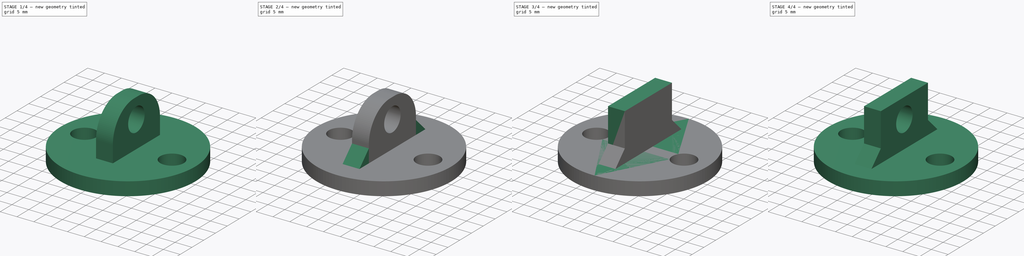
[diagram: build sequence overview — one tinted view per stage of 4, left to right]
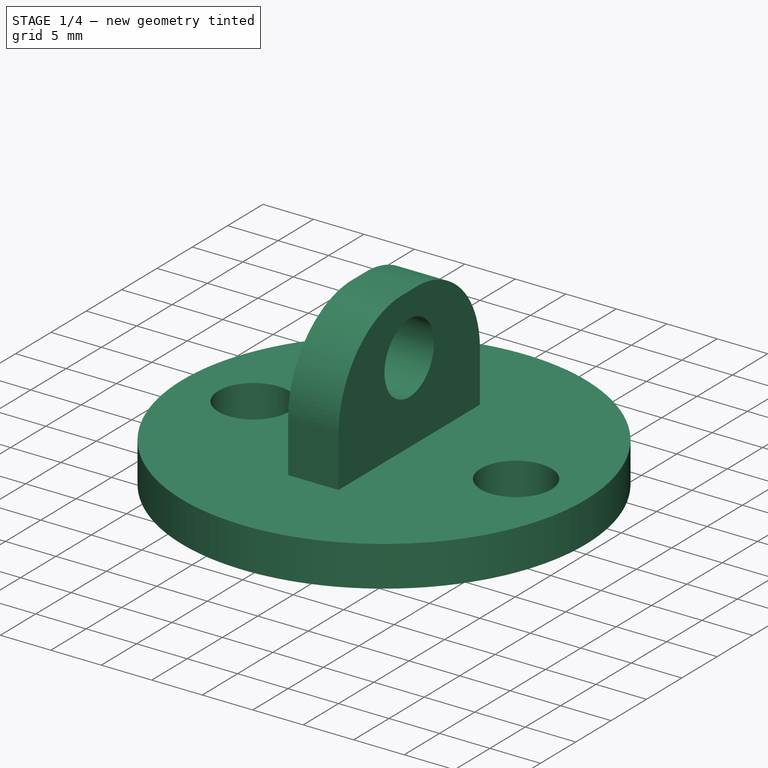
[diagram: stage 1 of 4 — iso view after this stage's code; geometry added in this stage tinted green]
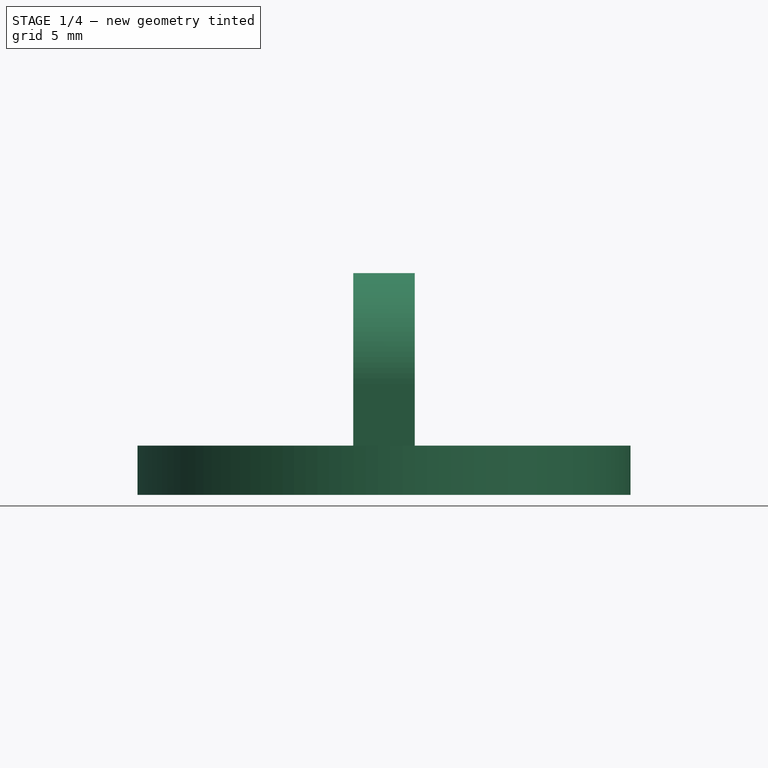
[diagram: stage 1 of 4 — front view after this stage's code; geometry added in this stage tinted green]
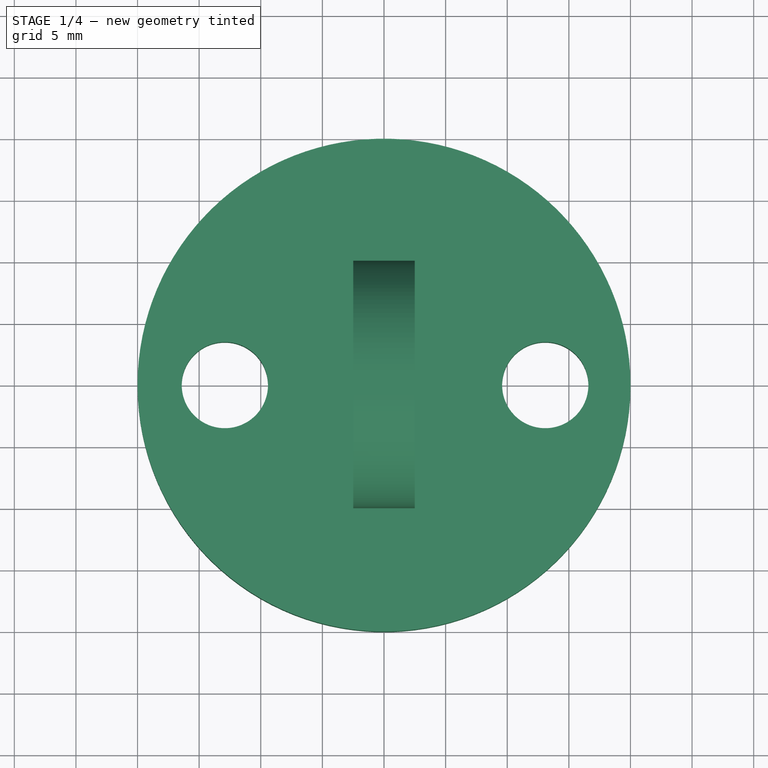
[diagram: stage 1 of 4 — top view after this stage's code; geometry added in this stage tinted green]
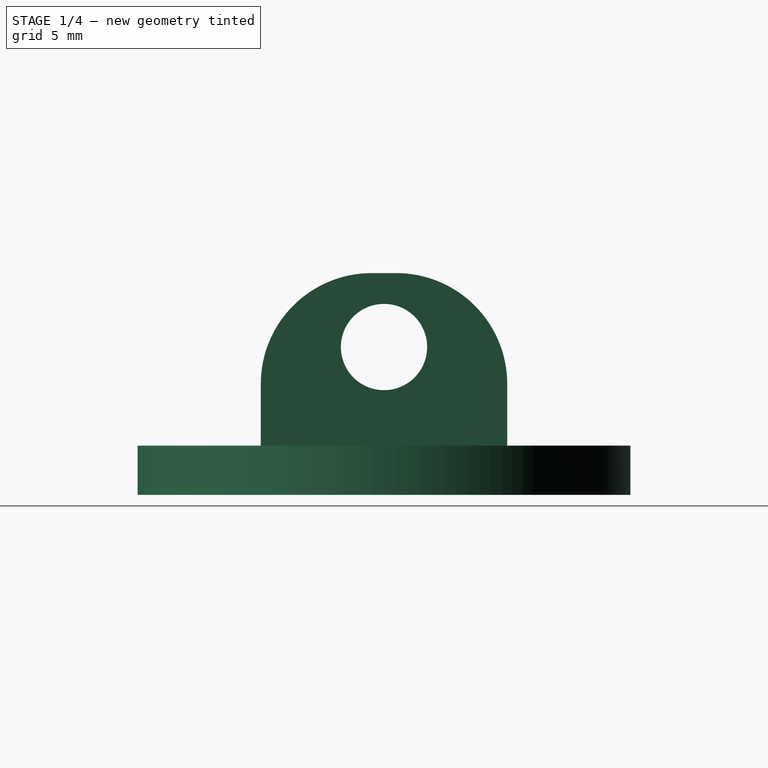
[diagram: stage 1 of 4 — right view after this stage's code; geometry added in this stage tinted green]
FCSTD DOCUMENT  (FreeCAD 0.14R3702 (Git))
Label: camera_mount
License: CC-BY 3.0
LicenseURL: http://creativecommons.org/licenses/by/3.0/
objects: Sketcher::SketchObject×2, PartDesign::Pocket×2, PartDesign::Fillet×2, PartDesign::Chamfer×2, Part::Cylinder×1, Part::Box×1, Part::MultiFuse×1, Part::Feature×1
note: 14 computed .brp shape members not serialized (recipe doc carries the construction recipe); baked Part::Feature solids carry a one-line shape summary decoded from their .brp

FEATURE [Part::Feature] Fusion001  label="base_part001"
  shape: bbox 40 x 40 x 18 mm, 11 faces (baked)
FEATURE [PartDesign::Fillet] Fillet
  Base = -> Fusion001 [Edge4]
  Radius = 9
FEATURE [PartDesign::Fillet] Fillet001
  Base = -> Fillet [Edge3]
  Radius = 9
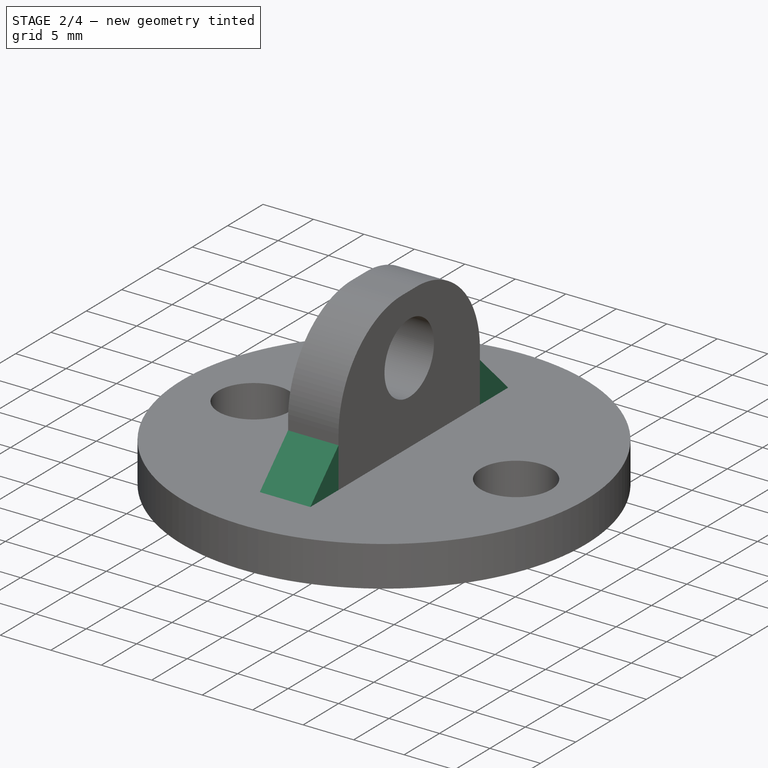
[diagram: stage 2 of 4 — iso view after this stage's code; geometry added in this stage tinted green]
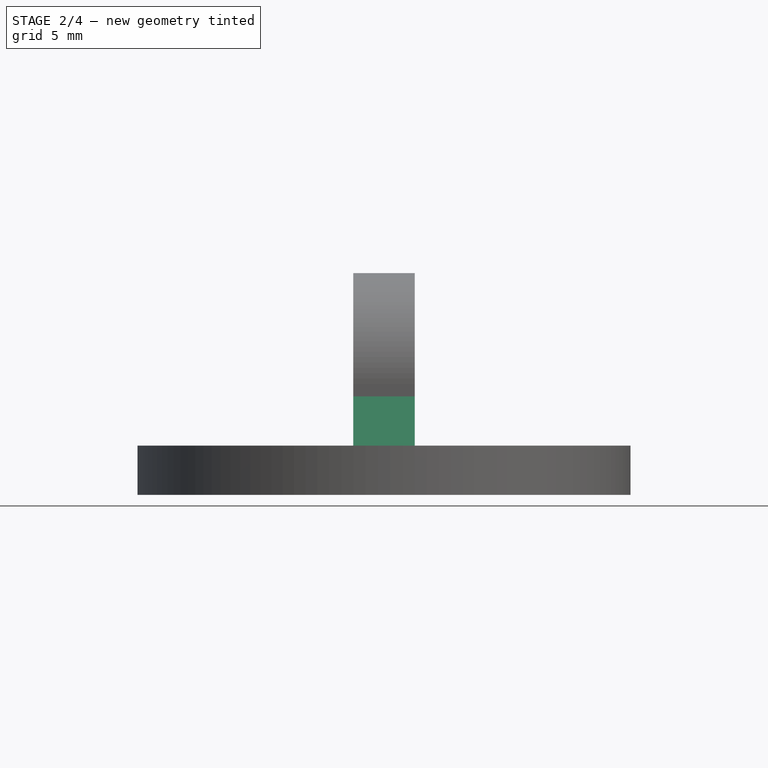
[diagram: stage 2 of 4 — front view after this stage's code; geometry added in this stage tinted green]
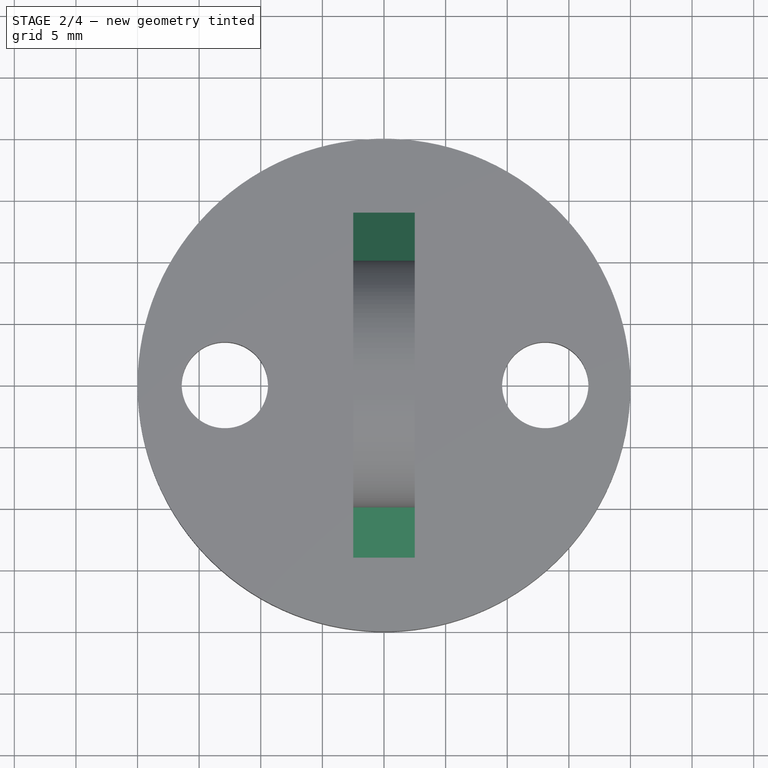
[diagram: stage 2 of 4 — top view after this stage's code; geometry added in this stage tinted green]
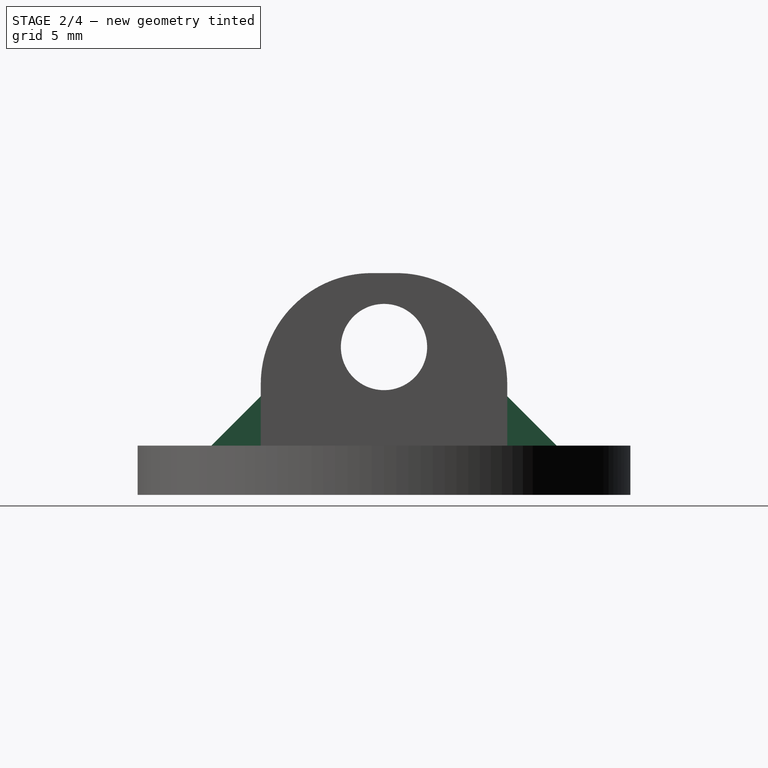
[diagram: stage 2 of 4 — right view after this stage's code; geometry added in this stage tinted green]
FEATURE [PartDesign::Chamfer] Chamfer
  Base = -> Fillet001 [Edge19]
  Size = 4
FEATURE [PartDesign::Chamfer] Chamfer001
  Base = -> Chamfer [Edge17]
  Size = 4
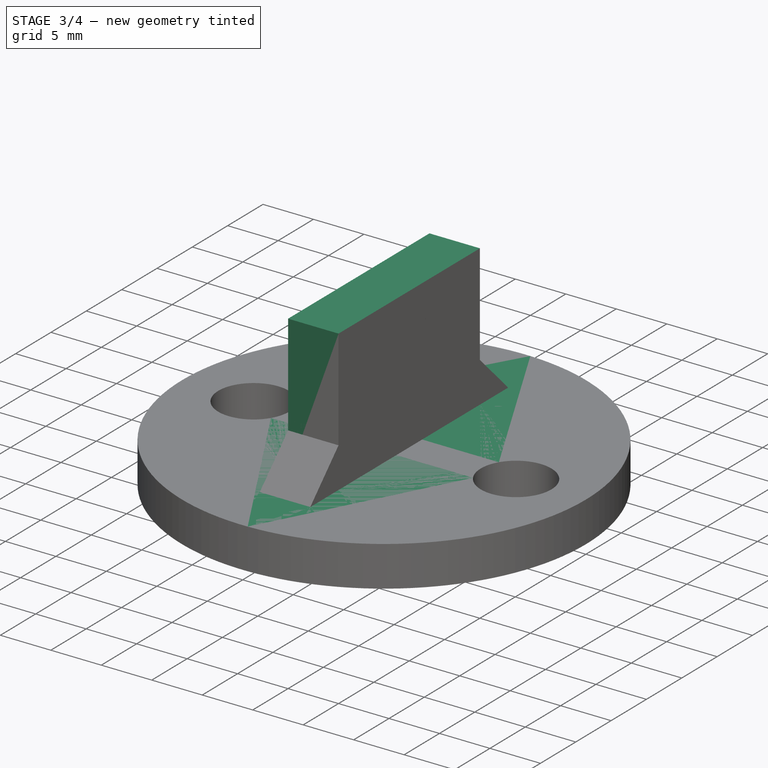
[diagram: stage 3 of 4 — iso view after this stage's code; geometry added in this stage tinted green]
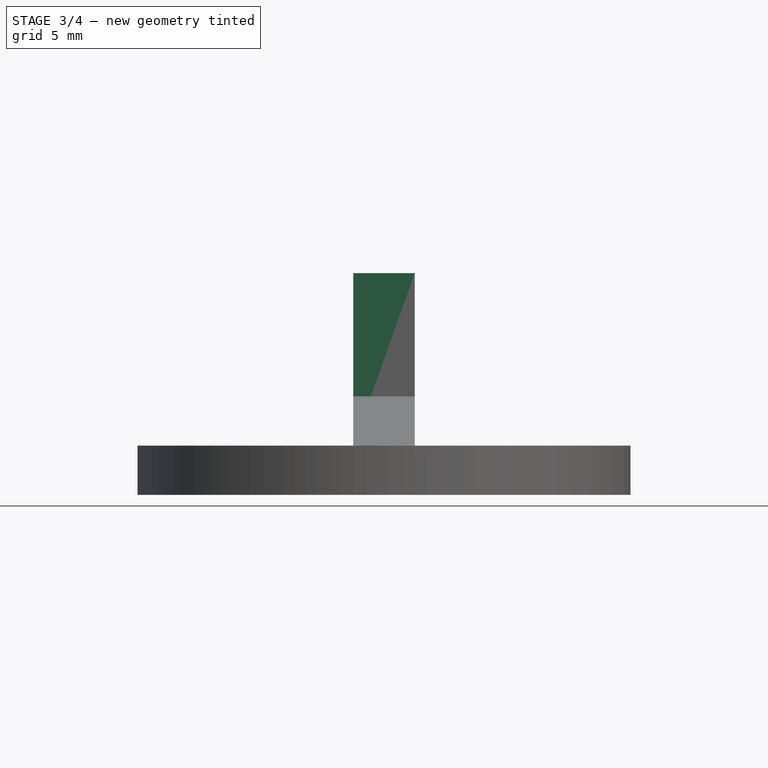
[diagram: stage 3 of 4 — front view after this stage's code; geometry added in this stage tinted green]
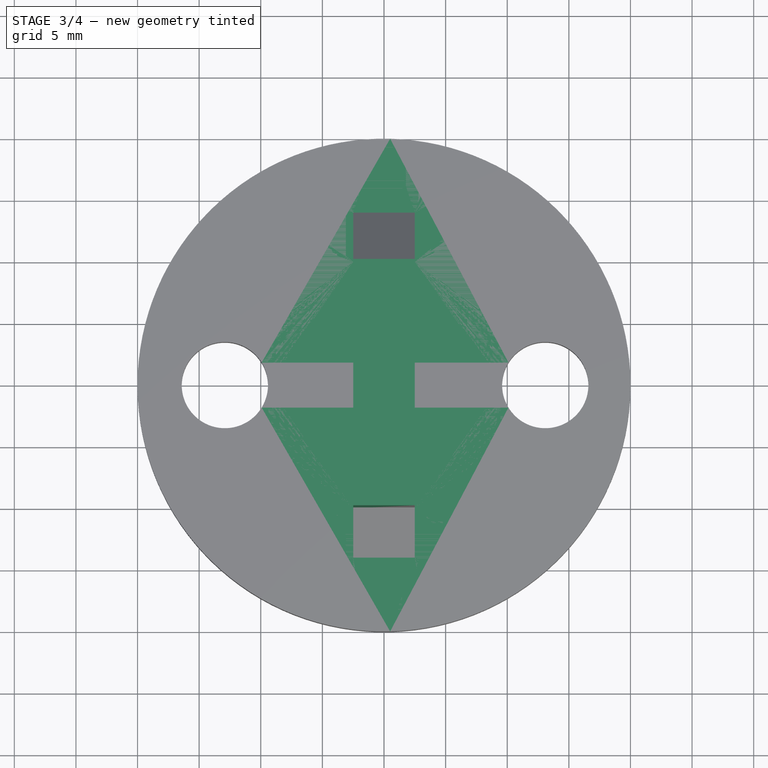
[diagram: stage 3 of 4 — top view after this stage's code; geometry added in this stage tinted green]
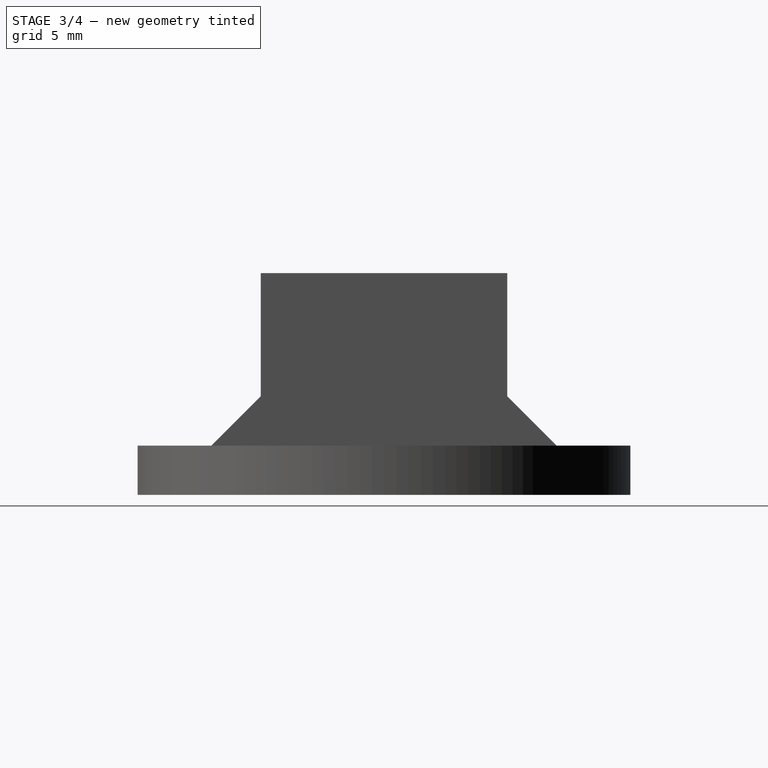
[diagram: stage 3 of 4 — right view after this stage's code; geometry added in this stage tinted green]
FEATURE [Part::Cylinder] Cylinder  label="base_cylinder"
  Angle = 360
  Height = 4
  Radius = 20
FEATURE [Part::Box] Box  label="mount_cube"
  Height = 14
  Length = 5
  Placement = pos=(-2.5,-10,4) rot=(0,0,1;0rad)
  Width = 20
FEATURE [PartDesign::Pocket] Pocket001  label="bolt_holes_pocket"
  Length = 5
  Sketch = -> Sketch001
  Type = 1
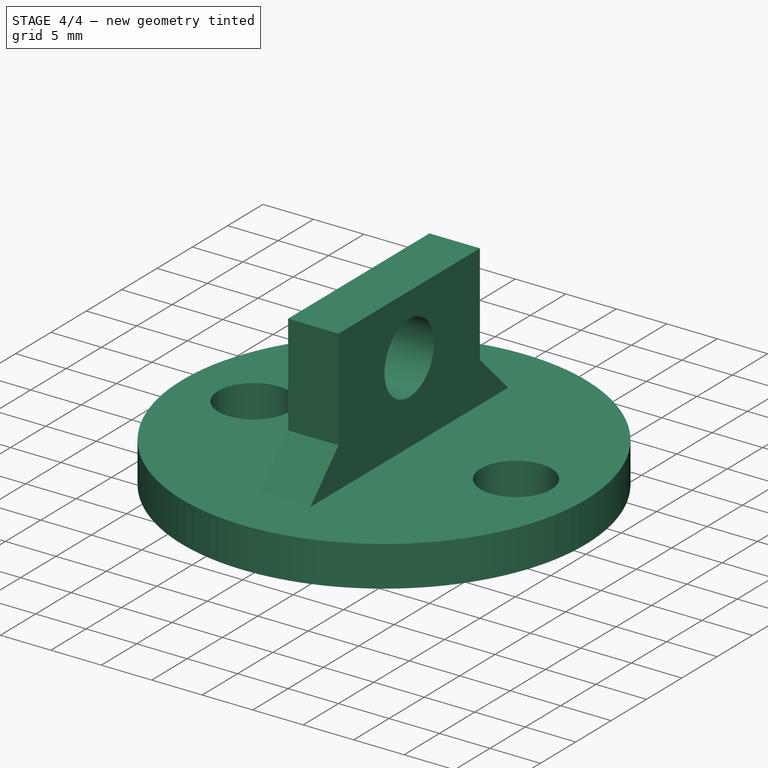
[diagram: stage 4 of 4 — iso view after this stage's code; geometry added in this stage tinted green]
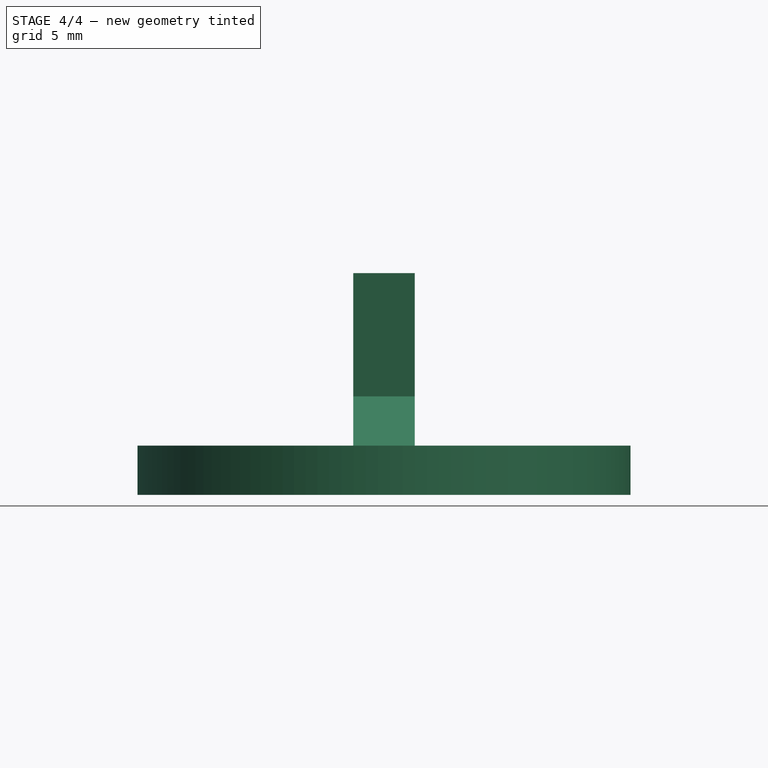
[diagram: stage 4 of 4 — front view after this stage's code; geometry added in this stage tinted green]
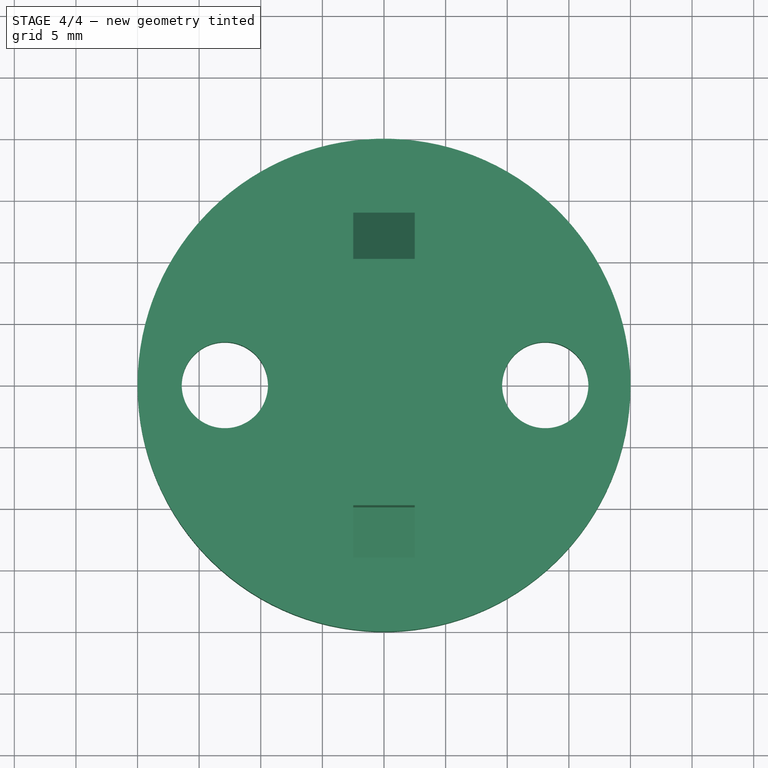
[diagram: stage 4 of 4 — top view after this stage's code; geometry added in this stage tinted green]
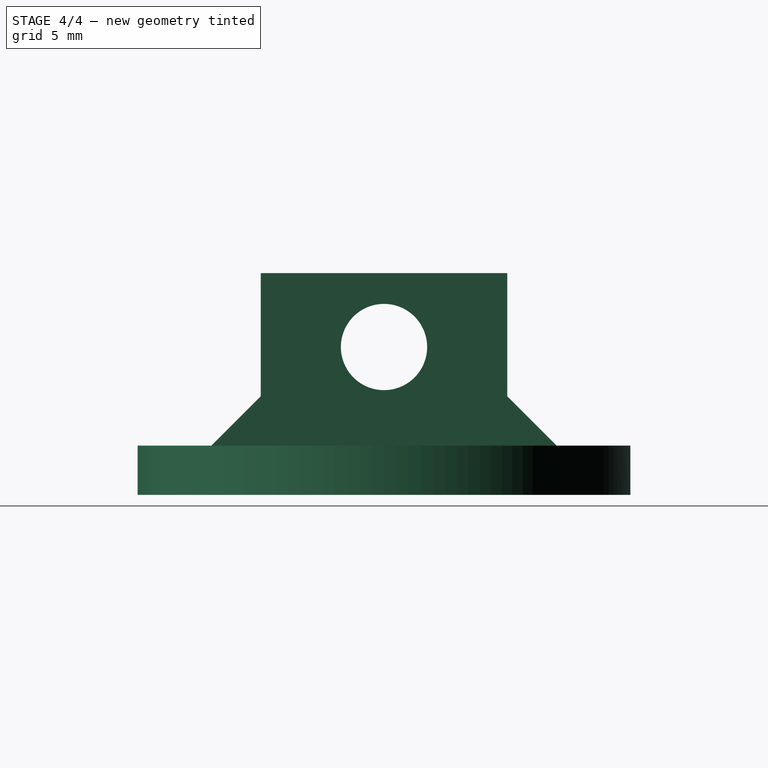
[diagram: stage 4 of 4 — right view after this stage's code; geometry added in this stage tinted green]
FEATURE [Sketcher::SketchObject] Sketch  label="mount_hole"
  Placement = pos=(2.5,-10,4) rot=(0.57735,0.57735,0.57735;2.0944rad)
  Support = -> Box [Face2]
  sketch-geometry (1):
    g0: Circle CenterX=10 CenterY=8 CenterZ=0 NormalX=0 NormalY=0 NormalZ=1 Radius=3.5
  constraints (3):
    c: Radius(g0) = 3.5
    c: DistanceX(g-1,g0) = 10
    c: DistanceY(g-1,g0) = 8
FEATURE [Sketcher::SketchObject] Sketch001  label="bolt_holes"
  Placement = pos=(0,0,4) rot=(0,0,1;0rad)
  Support = -> Cylinder [Face2]
  sketch-geometry (2):
    g0: Circle CenterX=-12.9142 CenterY=0 CenterZ=0 NormalX=0 NormalY=0 NormalZ=1 Radius=3.5
    g1: Circle CenterX=13.0858 CenterY=0 CenterZ=0 NormalX=0 NormalY=0 NormalZ=1 Radius=3.5
  constraints (5):
    c: PointOnObject(g0,g-1)
    c: PointOnObject(g1,g-1)
    c: Radius(g0) = 3.5
    c: Equal(g0,g1)
    c: DistanceX(g0,g1) = 26
FEATURE [PartDesign::Pocket] Pocket  label="mount_hole_pocket"
  Length = 5
  Placement = pos=(-2.5,-10,4) rot=(0,0,1;0rad)
  Sketch = -> Sketch
  Type = 1
FEATURE [Part::MultiFuse] Fusion  label="base_part"
  Shapes = -> [Pocket,Pocket001]
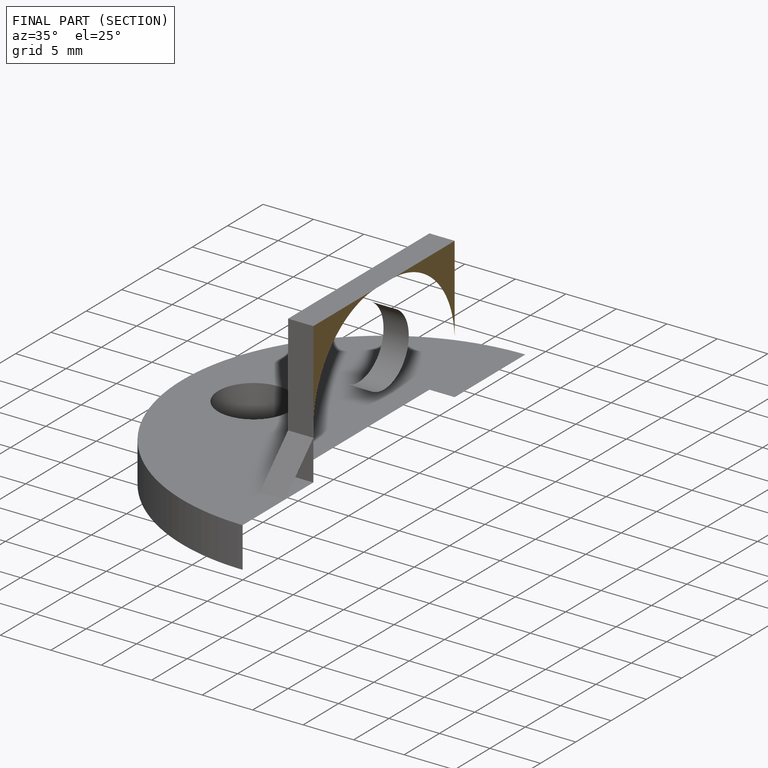
[diagram: finished part — half-section view (interior)]
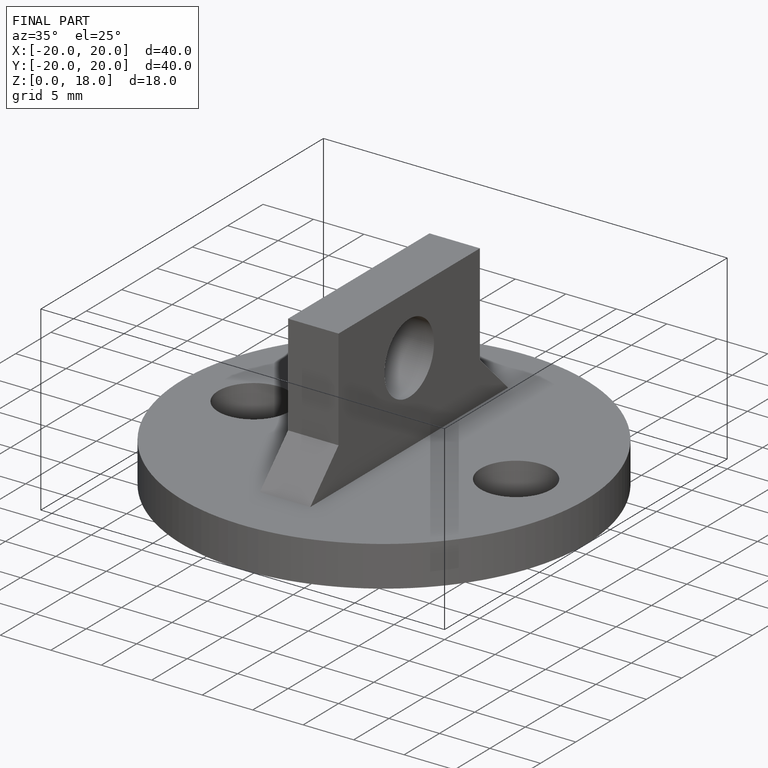
[diagram: finished part — iso view with bounding-box wireframe]
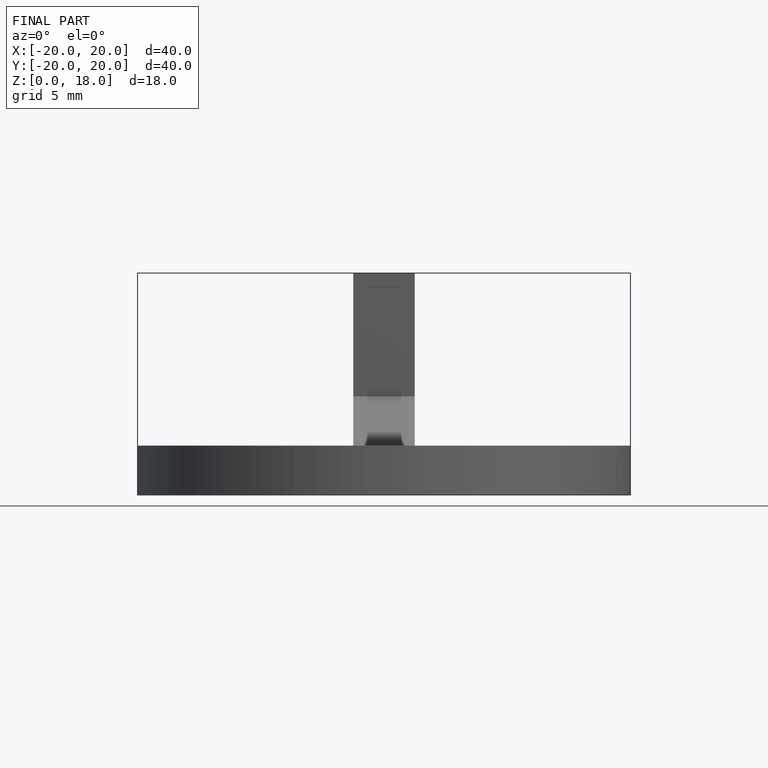
[diagram: finished part — front view with bounding-box wireframe]
